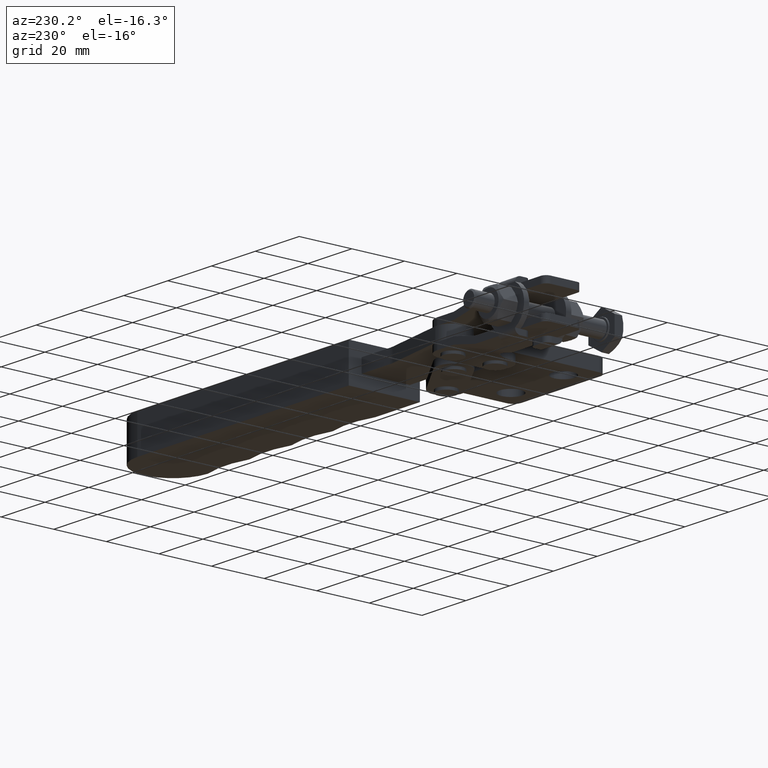
[diagram: clean part render]
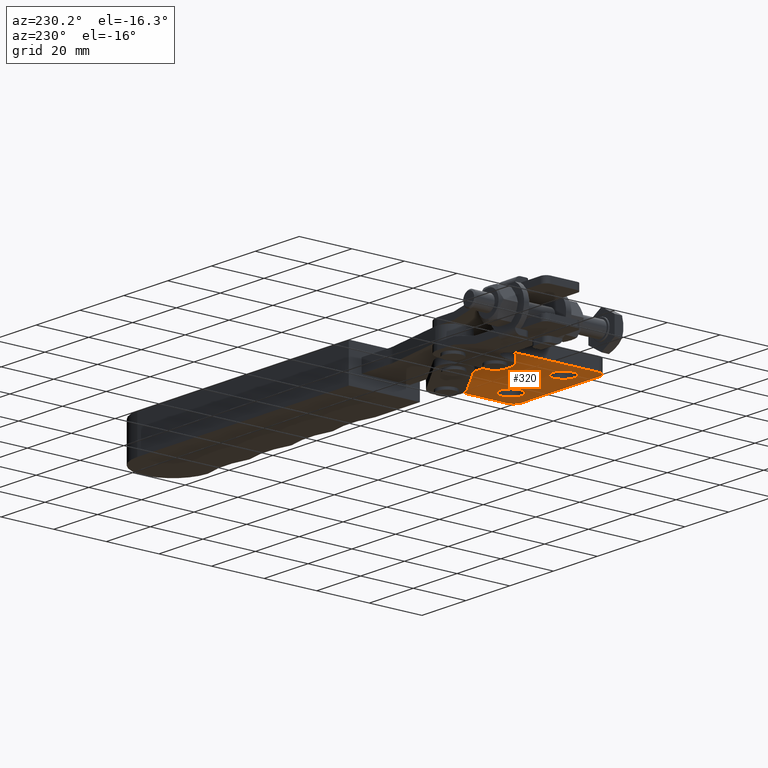
[diagram: same view with one face highlighted and labeled with its STEP entity id]
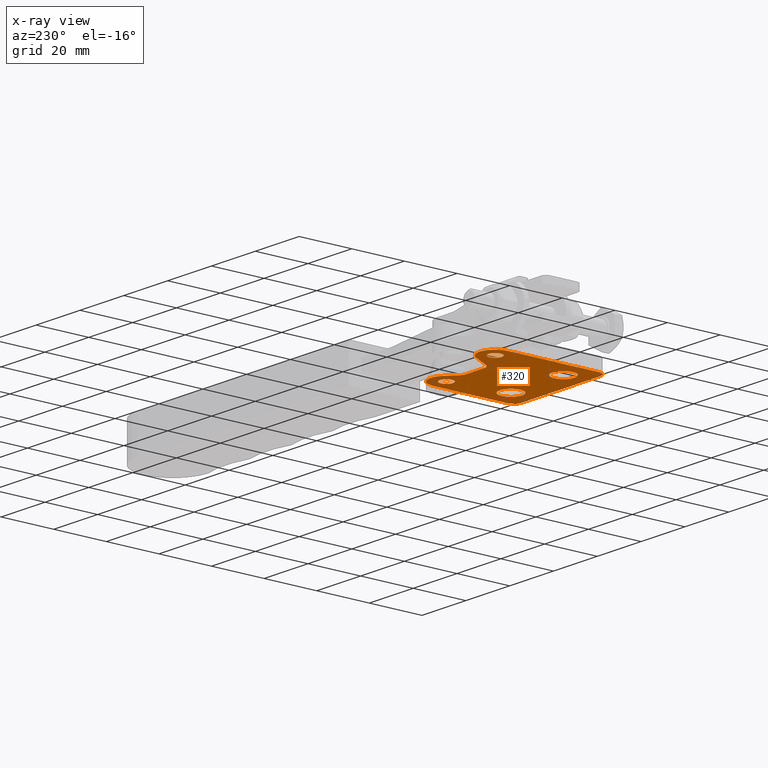
[diagram: x-ray of the same camera — body ghosted, the highlighted face saturated]
A machine part, auxiliary view. The second image highlights one B-rep face of the part: STEP entity #320.
The next image is the same camera in x-ray: the body ghosted, the highlighted face saturated — about 0% of this face is hidden behind the body in this view.
In plain terms, the highlighted planar face has unit normal (0, 0, 1).
Its self-contained STEP definition (entity closure, byte-faithful):
#26 = LINE ( 'NONE', #4665, #6742 ) ;
#140 = CARTESIAN_POINT ( 'NONE',  ( -13.24999999999992000, -13.00000000000028600, -2.499999999999997800 ) ) ;
#180 = EDGE_CURVE ( 'NONE', #2752, #987, #342, .T. ) ;
#184 = VERTEX_POINT ( 'NONE', #318 ) ;
#257 = DIRECTION ( 'NONE',  ( 1.000000000000000000, 0.0000000000000000000, 0.0000000000000000000 ) ) ;
#275 = VERTEX_POINT ( 'NONE', #2008 ) ;
#318 = CARTESIAN_POINT ( 'NONE',  ( -13.55162279617338300, 10.27145316245042400, -2.499999999999997800 ) ) ;
#320 = ADVANCED_FACE ( 'NONE', ( #7604, #6317, #710, #7193, #5351 ), #1955, .F. ) ;
#329 = DIRECTION ( 'NONE',  ( 1.000000000000000000, 0.0000000000000000000, 0.0000000000000000000 ) ) ;
#334 = AXIS2_PLACEMENT_3D ( 'NONE', #2434, #7895, #257 ) ;
#342 = CIRCLE ( 'NONE', #334, 4.249999999999976000 ) ;
#369 = EDGE_CURVE ( 'NONE', #4114, #934, #4111, .T. ) ;
#380 = ORIENTED_EDGE ( 'NONE', *, *, #7537, .T. ) ;
#446 = CARTESIAN_POINT ( 'NONE',  ( -8.999999999999943200, -13.00000000000028600, -2.499999999999997800 ) ) ;
#465 = EDGE_LOOP ( 'NONE', ( #5635, #6324, #3977, #8314, #6947, #8103, #3121, #7425, #5673, #6009, #8498, #5205 ) ) ;
#501 = DIRECTION ( 'NONE',  ( 0.0000000000000000000, 0.0000000000000000000, 1.000000000000000000 ) ) ;
#542 = CARTESIAN_POINT ( 'NONE',  ( -30.80554066033814600, 18.50293059670001500, -2.499999999999997800 ) ) ;
#594 = VERTEX_POINT ( 'NONE', #4164 ) ;
#710 = FACE_BOUND ( 'NONE', #2740, .T. ) ;
#775 = VECTOR ( 'NONE', #3497, 1000.000000000000000 ) ;
#849 = CIRCLE ( 'NONE', #3599, 5.999999999999856100 ) ;
#934 = VERTEX_POINT ( 'NONE', #3203 ) ;
#955 = CARTESIAN_POINT ( 'NONE',  ( -30.80554066033814600, 18.50293059670001500, -2.499999999999997800 ) ) ;
#970 = LINE ( 'NONE', #6025, #775 ) ;
#987 = VERTEX_POINT ( 'NONE', #4192 ) ;
#999 = CARTESIAN_POINT ( 'NONE',  ( -6.000000000000163400, 9.000000000000067500, -2.499999999999997800 ) ) ;
#1069 = VERTEX_POINT ( 'NONE', #2020 ) ;
#1077 = CARTESIAN_POINT ( 'NONE',  ( -10.01675440765210100, 13.45709367509880900, -2.499999999999997800 ) ) ;
#1105 = AXIS2_PLACEMENT_3D ( 'NONE', #4086, #2597, #5354 ) ;
#1176 = DIRECTION ( 'NONE',  ( 0.0000000000000000000, 0.0000000000000000000, 1.000000000000000000 ) ) ;
#1236 = CARTESIAN_POINT ( 'NONE',  ( -41.99999999999997200, 15.49999999999990600, -2.499999999999997800 ) ) ;
#1386 = DIRECTION ( 'NONE',  ( 1.000000000000000000, 0.0000000000000000000, 0.0000000000000000000 ) ) ;
#1461 = CARTESIAN_POINT ( 'NONE',  ( -6.000000000000163400, 9.000000000000067500, -2.499999999999997800 ) ) ;
#1536 = VERTEX_POINT ( 'NONE', #3523 ) ;
#1638 = DIRECTION ( 'NONE',  ( -0.0000000000000000000, -0.0000000000000000000, -1.000000000000000000 ) ) ;
#1701 = AXIS2_PLACEMENT_3D ( 'NONE', #2254, #1176, #3800 ) ;
#1717 = DIRECTION ( 'NONE',  ( 0.0000000000000000000, 0.0000000000000000000, 1.000000000000000000 ) ) ;
#1766 = DIRECTION ( 'NONE',  ( 1.000000000000000000, 0.0000000000000000000, 0.0000000000000000000 ) ) ;
#1848 = CARTESIAN_POINT ( 'NONE',  ( -2.999999999999877900, -22.00000000000029500, -2.499999999999997800 ) ) ;
#1875 = LINE ( 'NONE', #8294, #3560 ) ;
#1924 = CARTESIAN_POINT ( 'NONE',  ( -38.99999999999997200, -19.00000000000029500, -2.499999999999997800 ) ) ;
#1941 = EDGE_CURVE ( 'NONE', #5573, #5530, #849, .T. ) ;
#1955 = PLANE ( 'NONE',  #2815 ) ;
#1967 = CARTESIAN_POINT ( 'NONE',  ( -28.74999999999998900, -13.00000000000028600, -2.499999999999997800 ) ) ;
#2008 = CARTESIAN_POINT ( 'NONE',  ( -3.500000000000163000, 9.000000000000067500, -2.499999999999997800 ) ) ;
#2020 = CARTESIAN_POINT ( 'NONE',  ( -41.99999999999997200, -19.00000000000029500, -2.499999999999997800 ) ) ;
#2091 = DIRECTION ( 'NONE',  ( -0.5004884327833594200, 0.8657432232770041500, -0.0000000000000000000 ) ) ;
#2136 = VERTEX_POINT ( 'NONE', #1967 ) ;
#2137 = EDGE_LOOP ( 'NONE', ( #3597, #8288 ) ) ;
#2160 = VERTEX_POINT ( 'NONE', #1236 ) ;
#2211 = EDGE_CURVE ( 'NONE', #2136, #4478, #7944, .T. ) ;
#2221 = VERTEX_POINT ( 'NONE', #1848 ) ;
#2246 = DIRECTION ( 'NONE',  ( 1.000000000000000000, 0.0000000000000000000, 0.0000000000000000000 ) ) ;
#2254 = CARTESIAN_POINT ( 'NONE',  ( -36.00000000000007800, 15.49999999999990600, -2.499999999999997800 ) ) ;
#2275 = CARTESIAN_POINT ( 'NONE',  ( -15.55999999999985700, 12.50000000000018100, -2.499999999999997800 ) ) ;
#2357 = CIRCLE ( 'NONE', #3866, 5.999999999999894300 ) ;
#2369 = DIRECTION ( 'NONE',  ( -0.0000000000000000000, -0.0000000000000000000, -1.000000000000000000 ) ) ;
#2425 = ORIENTED_EDGE ( 'NONE', *, *, #180, .T. ) ;
#2434 = CARTESIAN_POINT ( 'NONE',  ( -8.999999999999943200, -13.00000000000028600, -2.499999999999997800 ) ) ;
#2567 = VERTEX_POINT ( 'NONE', #542 ) ;
#2597 = DIRECTION ( 'NONE',  ( -0.0000000000000000000, -0.0000000000000000000, -1.000000000000000000 ) ) ;
#2612 = VERTEX_POINT ( 'NONE', #6424 ) ;
#2740 = EDGE_LOOP ( 'NONE', ( #8049, #380 ) ) ;
#2746 = EDGE_CURVE ( 'NONE', #2567, #2160, #2357, .T. ) ;
#2752 = VERTEX_POINT ( 'NONE', #140 ) ;
#2815 = AXIS2_PLACEMENT_3D ( 'NONE', #6363, #1717, #5706 ) ;
#2827 = EDGE_CURVE ( 'NONE', #987, #2752, #6881, .T. ) ;
#2920 = DIRECTION ( 'NONE',  ( -1.009293658750126200E-014, 1.000000000000000000, 0.0000000000000000000 ) ) ;
#2934 = EDGE_CURVE ( 'NONE', #2612, #2221, #7820, .T. ) ;
#2950 = EDGE_LOOP ( 'NONE', ( #2425, #8631 ) ) ;
#2972 = AXIS2_PLACEMENT_3D ( 'NONE', #8053, #4531, #1766 ) ;
#2979 = DIRECTION ( 'NONE',  ( 1.000000000000000000, 0.0000000000000000000, 0.0000000000000000000 ) ) ;
#3088 = VECTOR ( 'NONE', #7988, 1000.000000000000000 ) ;
#3110 = EDGE_CURVE ( 'NONE', #184, #7209, #6202, .T. ) ;
#3121 = ORIENTED_EDGE ( 'NONE', *, *, #8305, .F. ) ;
#3193 = LINE ( 'NONE', #7482, #6806 ) ;
#3203 = CARTESIAN_POINT ( 'NONE',  ( -26.46722966983117700, 10.99853470164980400, -2.499999999999997800 ) ) ;
#3241 = DIRECTION ( 'NONE',  ( 0.0000000000000000000, 0.0000000000000000000, 1.000000000000000000 ) ) ;
#3313 = CARTESIAN_POINT ( 'NONE',  ( -23.87000000000016800, 9.499999999999706900, -2.499999999999997800 ) ) ;
#3497 = DIRECTION ( 'NONE',  ( -0.0000000000000000000, -1.000000000000000000, -0.0000000000000000000 ) ) ;
#3523 = CARTESIAN_POINT ( 'NONE',  ( -38.99999999999997200, -22.00000000000029500, -2.499999999999997800 ) ) ;
#3560 = VECTOR ( 'NONE', #5604, 1000.000000000000000 ) ;
#3597 = ORIENTED_EDGE ( 'NONE', *, *, #6378, .T. ) ;
#3599 = AXIS2_PLACEMENT_3D ( 'NONE', #999, #5753, #2246 ) ;
#3660 = EDGE_CURVE ( 'NONE', #2612, #5573, #26, .T. ) ;
#3727 = CARTESIAN_POINT ( 'NONE',  ( -3.070460552478948600E-013, 9.000000000000067500, -2.499999999999997800 ) ) ;
#3766 = LINE ( 'NONE', #4669, #3088 ) ;
#3800 = DIRECTION ( 'NONE',  ( 1.000000000000000000, 0.0000000000000000000, 0.0000000000000000000 ) ) ;
#3866 = AXIS2_PLACEMENT_3D ( 'NONE', #5699, #5191, #8108 ) ;
#3977 = ORIENTED_EDGE ( 'NONE', *, *, #7032, .F. ) ;
#4086 = CARTESIAN_POINT ( 'NONE',  ( -2.999999999999877900, -19.00000000000029500, -2.499999999999997800 ) ) ;
#4111 = CIRCLE ( 'NONE', #2972, 3.000000000000360200 ) ;
#4114 = VERTEX_POINT ( 'NONE', #3313 ) ;
#4164 = CARTESIAN_POINT ( 'NONE',  ( -8.500000000000163400, 9.000000000000067500, -2.499999999999997800 ) ) ;
#4192 = CARTESIAN_POINT ( 'NONE',  ( -4.749999999999968000, -13.00000000000028600, -2.499999999999997800 ) ) ;
#4257 = CARTESIAN_POINT ( 'NONE',  ( -15.56000000000016900, 9.499999999999706900, -2.499999999999997800 ) ) ;
#4468 = EDGE_CURVE ( 'NONE', #1536, #2221, #1875, .T. ) ;
#4473 = AXIS2_PLACEMENT_3D ( 'NONE', #2275, #2369, #5257 ) ;
#4478 = VERTEX_POINT ( 'NONE', #8681 ) ;
#4531 = DIRECTION ( 'NONE',  ( -0.0000000000000000000, -0.0000000000000000000, -1.000000000000000000 ) ) ;
#4611 = AXIS2_PLACEMENT_3D ( 'NONE', #5528, #6796, #5402 ) ;
#4665 = CARTESIAN_POINT ( 'NONE',  ( 6.418476861114186200E-014, -13.00000000000028600, -2.499999999999997800 ) ) ;
#4669 = CARTESIAN_POINT ( 'NONE',  ( -15.56000000000016900, 9.499999999999706900, -2.499999999999997800 ) ) ;
#4818 = CIRCLE ( 'NONE', #5424, 3.000000000000002700 ) ;
#4901 = DIRECTION ( 'NONE',  ( 1.000000000000000000, 0.0000000000000000000, 0.0000000000000000000 ) ) ;
#5055 = EDGE_CURVE ( 'NONE', #6034, #6882, #8667, .T. ) ;
#5125 = EDGE_LOOP ( 'NONE', ( #7081, #6351 ) ) ;
#5156 = EDGE_CURVE ( 'NONE', #5530, #184, #3193, .T. ) ;
#5191 = DIRECTION ( 'NONE',  ( 0.0000000000000000000, 0.0000000000000000000, 1.000000000000000000 ) ) ;
#5205 = ORIENTED_EDGE ( 'NONE', *, *, #2934, .T. ) ;
#5257 = DIRECTION ( 'NONE',  ( 1.000000000000000000, 0.0000000000000000000, 0.0000000000000000000 ) ) ;
#5351 = FACE_OUTER_BOUND ( 'NONE', #465, .T. ) ;
#5354 = DIRECTION ( 'NONE',  ( 1.000000000000000000, 0.0000000000000000000, 0.0000000000000000000 ) ) ;
#5362 = CARTESIAN_POINT ( 'NONE',  ( -32.99999999999996400, -13.00000000000028600, -2.499999999999997800 ) ) ;
#5402 = DIRECTION ( 'NONE',  ( 1.000000000000000000, 0.0000000000000000000, 0.0000000000000000000 ) ) ;
#5424 = AXIS2_PLACEMENT_3D ( 'NONE', #1924, #1638, #1386 ) ;
#5528 = CARTESIAN_POINT ( 'NONE',  ( -32.99999999999996400, -13.00000000000028600, -2.499999999999997800 ) ) ;
#5530 = VERTEX_POINT ( 'NONE', #1077 ) ;
#5561 = CIRCLE ( 'NONE', #4611, 4.249999999999976000 ) ;
#5573 = VERTEX_POINT ( 'NONE', #3727 ) ;
#5604 = DIRECTION ( 'NONE',  ( 1.000000000000000000, 0.0000000000000000000, 0.0000000000000000000 ) ) ;
#5614 = DIRECTION ( 'NONE',  ( 1.000000000000000000, 0.0000000000000000000, 0.0000000000000000000 ) ) ;
#5635 = ORIENTED_EDGE ( 'NONE', *, *, #4468, .F. ) ;
#5673 = ORIENTED_EDGE ( 'NONE', *, *, #5156, .F. ) ;
#5699 = CARTESIAN_POINT ( 'NONE',  ( -36.00000000000007800, 15.49999999999990600, -2.499999999999997800 ) ) ;
#5706 = DIRECTION ( 'NONE',  ( 1.000000000000000000, 0.0000000000000000000, -0.0000000000000000000 ) ) ;
#5753 = DIRECTION ( 'NONE',  ( 0.0000000000000000000, 0.0000000000000000000, 1.000000000000000000 ) ) ;
#5773 = VECTOR ( 'NONE', #2091, 1000.000000000000100 ) ;
#5781 = LINE ( 'NONE', #955, #5773 ) ;
#5862 = DIRECTION ( 'NONE',  ( 0.0000000000000000000, 0.0000000000000000000, 1.000000000000000000 ) ) ;
#5929 = AXIS2_PLACEMENT_3D ( 'NONE', #1461, #501, #7371 ) ;
#6009 = ORIENTED_EDGE ( 'NONE', *, *, #1941, .F. ) ;
#6025 = CARTESIAN_POINT ( 'NONE',  ( -41.99999999999997200, -13.00000000000028600, -2.499999999999997800 ) ) ;
#6034 = VERTEX_POINT ( 'NONE', #8603 ) ;
#6066 = EDGE_CURVE ( 'NONE', #6882, #6034, #6854, .T. ) ;
#6118 = DIRECTION ( 'NONE',  ( -0.7428489458498014300, -0.6694590679420502300, 0.0000000000000000000 ) ) ;
#6202 = CIRCLE ( 'NONE', #4473, 3.000000000000476100 ) ;
#6317 = FACE_BOUND ( 'NONE', #2950, .T. ) ;
#6324 = ORIENTED_EDGE ( 'NONE', *, *, #7925, .T. ) ;
#6351 = ORIENTED_EDGE ( 'NONE', *, *, #6066, .T. ) ;
#6363 = CARTESIAN_POINT ( 'NONE',  ( -32.99999999999996400, -13.00000000000028600, -2.499999999999997800 ) ) ;
#6378 = EDGE_CURVE ( 'NONE', #4478, #2136, #5561, .T. ) ;
#6424 = CARTESIAN_POINT ( 'NONE',  ( 1.247423881361492200E-013, -19.00000000000026300, -2.499999999999997800 ) ) ;
#6505 = CIRCLE ( 'NONE', #6876, 2.500000000000000000 ) ;
#6522 = CIRCLE ( 'NONE', #5929, 2.500000000000000000 ) ;
#6742 = VECTOR ( 'NONE', #2920, 1000.000000000000000 ) ;
#6748 = DIRECTION ( 'NONE',  ( 0.0000000000000000000, 0.0000000000000000000, 1.000000000000000000 ) ) ;
#6796 = DIRECTION ( 'NONE',  ( 0.0000000000000000000, 0.0000000000000000000, 1.000000000000000000 ) ) ;
#6806 = VECTOR ( 'NONE', #6118, 1000.000000000000100 ) ;
#6854 = CIRCLE ( 'NONE', #1701, 2.499999999999995100 ) ;
#6876 = AXIS2_PLACEMENT_3D ( 'NONE', #8457, #8608, #2979 ) ;
#6881 = CIRCLE ( 'NONE', #7548, 4.249999999999976000 ) ;
#6882 = VERTEX_POINT ( 'NONE', #7234 ) ;
#6947 = ORIENTED_EDGE ( 'NONE', *, *, #7867, .F. ) ;
#7032 = EDGE_CURVE ( 'NONE', #2160, #1069, #970, .T. ) ;
#7081 = ORIENTED_EDGE ( 'NONE', *, *, #5055, .T. ) ;
#7181 = AXIS2_PLACEMENT_3D ( 'NONE', #8471, #6748, #329 ) ;
#7193 = FACE_BOUND ( 'NONE', #5125, .T. ) ;
#7209 = VERTEX_POINT ( 'NONE', #4257 ) ;
#7234 = CARTESIAN_POINT ( 'NONE',  ( -33.50000000000008500, 15.49999999999990600, -2.499999999999997800 ) ) ;
#7371 = DIRECTION ( 'NONE',  ( 1.000000000000000000, 0.0000000000000000000, 0.0000000000000000000 ) ) ;
#7425 = ORIENTED_EDGE ( 'NONE', *, *, #3110, .F. ) ;
#7482 = CARTESIAN_POINT ( 'NONE',  ( -10.01675440765210100, 13.45709367509880900, -2.499999999999997800 ) ) ;
#7537 = EDGE_CURVE ( 'NONE', #275, #594, #6522, .T. ) ;
#7548 = AXIS2_PLACEMENT_3D ( 'NONE', #446, #5862, #5614 ) ;
#7563 = EDGE_CURVE ( 'NONE', #594, #275, #6505, .T. ) ;
#7604 = FACE_BOUND ( 'NONE', #2137, .T. ) ;
#7820 = CIRCLE ( 'NONE', #1105, 3.000000000000000000 ) ;
#7867 = EDGE_CURVE ( 'NONE', #934, #2567, #5781, .T. ) ;
#7895 = DIRECTION ( 'NONE',  ( 0.0000000000000000000, 0.0000000000000000000, 1.000000000000000000 ) ) ;
#7925 = EDGE_CURVE ( 'NONE', #1536, #1069, #4818, .T. ) ;
#7944 = CIRCLE ( 'NONE', #8638, 4.249999999999976000 ) ;
#7988 = DIRECTION ( 'NONE',  ( -1.000000000000000000, 0.0000000000000000000, 0.0000000000000000000 ) ) ;
#8049 = ORIENTED_EDGE ( 'NONE', *, *, #7563, .T. ) ;
#8053 = CARTESIAN_POINT ( 'NONE',  ( -23.86999999999985500, 12.50000000000006800, -2.499999999999997800 ) ) ;
#8103 = ORIENTED_EDGE ( 'NONE', *, *, #369, .F. ) ;
#8108 = DIRECTION ( 'NONE',  ( 1.000000000000000000, 0.0000000000000000000, 0.0000000000000000000 ) ) ;
#8288 = ORIENTED_EDGE ( 'NONE', *, *, #2211, .T. ) ;
#8294 = CARTESIAN_POINT ( 'NONE',  ( -32.99999999999996400, -22.00000000000029500, -2.499999999999997800 ) ) ;
#8305 = EDGE_CURVE ( 'NONE', #7209, #4114, #3766, .T. ) ;
#8314 = ORIENTED_EDGE ( 'NONE', *, *, #2746, .F. ) ;
#8457 = CARTESIAN_POINT ( 'NONE',  ( -6.000000000000163400, 9.000000000000067500, -2.499999999999997800 ) ) ;
#8471 = CARTESIAN_POINT ( 'NONE',  ( -36.00000000000007800, 15.49999999999990600, -2.499999999999997800 ) ) ;
#8498 = ORIENTED_EDGE ( 'NONE', *, *, #3660, .F. ) ;
#8603 = CARTESIAN_POINT ( 'NONE',  ( -38.50000000000007800, 15.49999999999990600, -2.499999999999997800 ) ) ;
#8608 = DIRECTION ( 'NONE',  ( 0.0000000000000000000, 0.0000000000000000000, 1.000000000000000000 ) ) ;
#8631 = ORIENTED_EDGE ( 'NONE', *, *, #2827, .T. ) ;
#8638 = AXIS2_PLACEMENT_3D ( 'NONE', #5362, #3241, #4901 ) ;
#8667 = CIRCLE ( 'NONE', #7181, 2.499999999999995100 ) ;
#8681 = CARTESIAN_POINT ( 'NONE',  ( -37.24999999999994300, -13.00000000000028600, -2.499999999999997800 ) ) ;